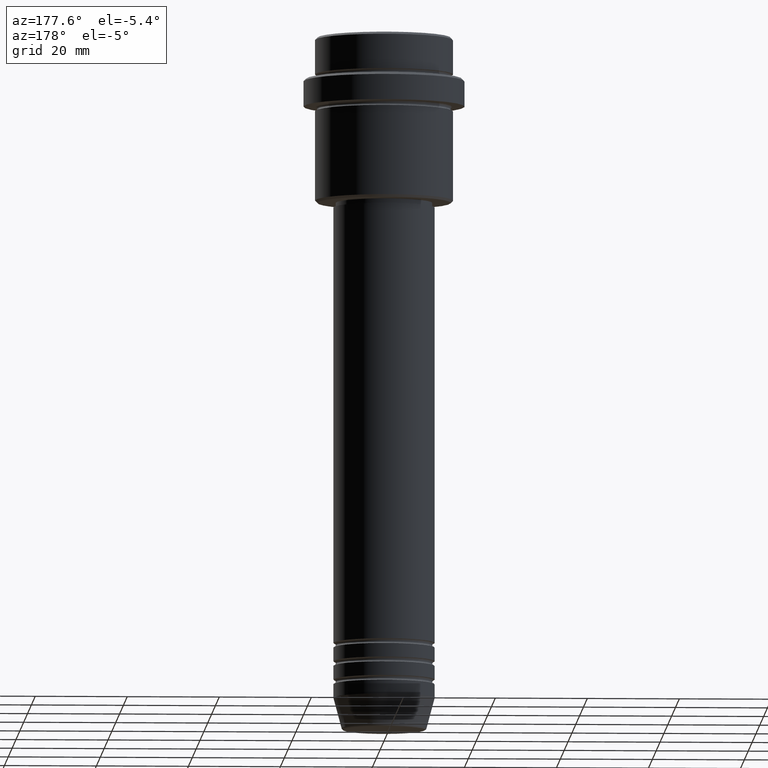
[diagram: clean part render]
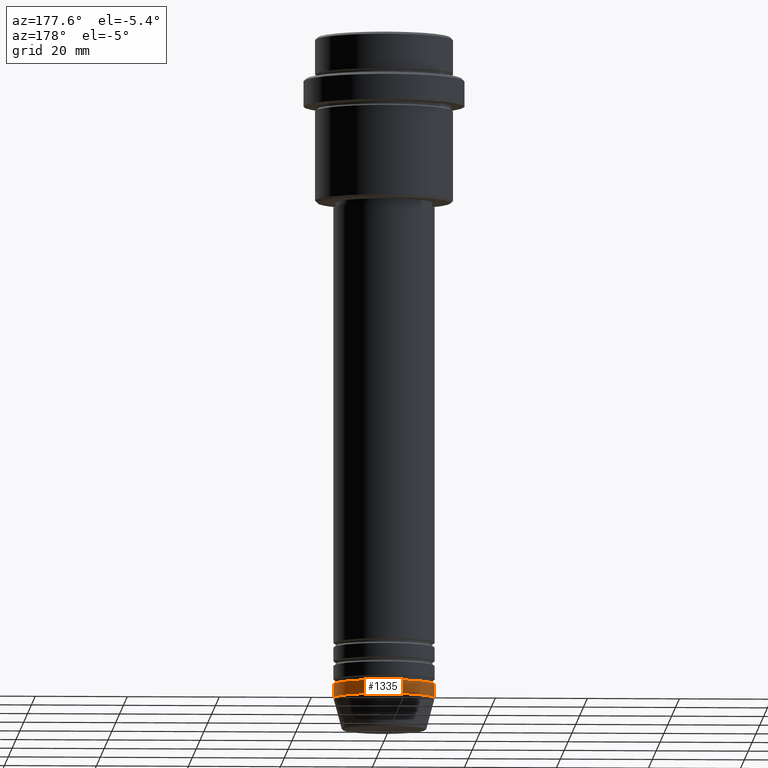
[diagram: same view with one face highlighted and labeled with its STEP entity id]
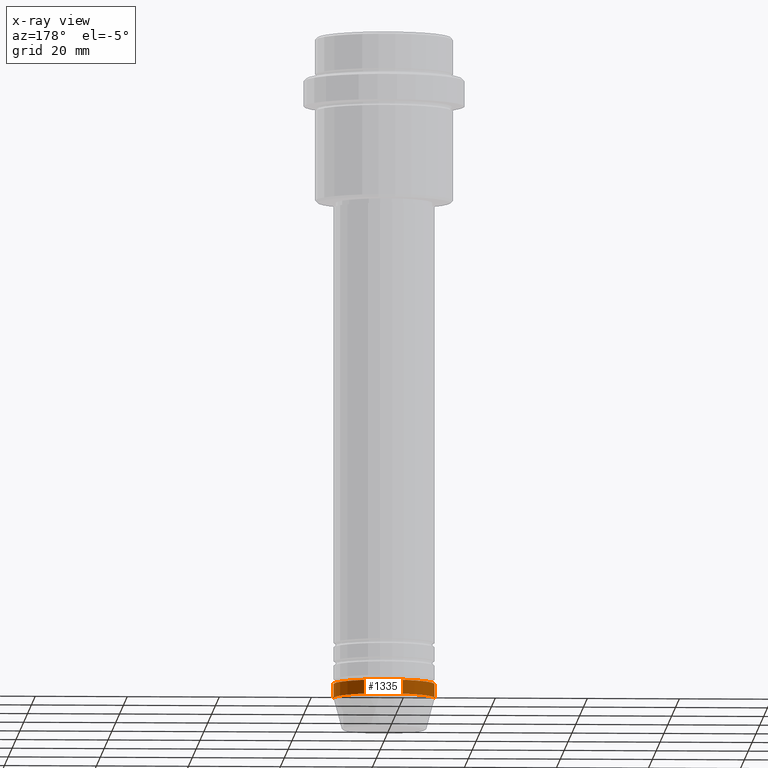
[diagram: x-ray of the same camera — body ghosted, the highlighted face saturated]
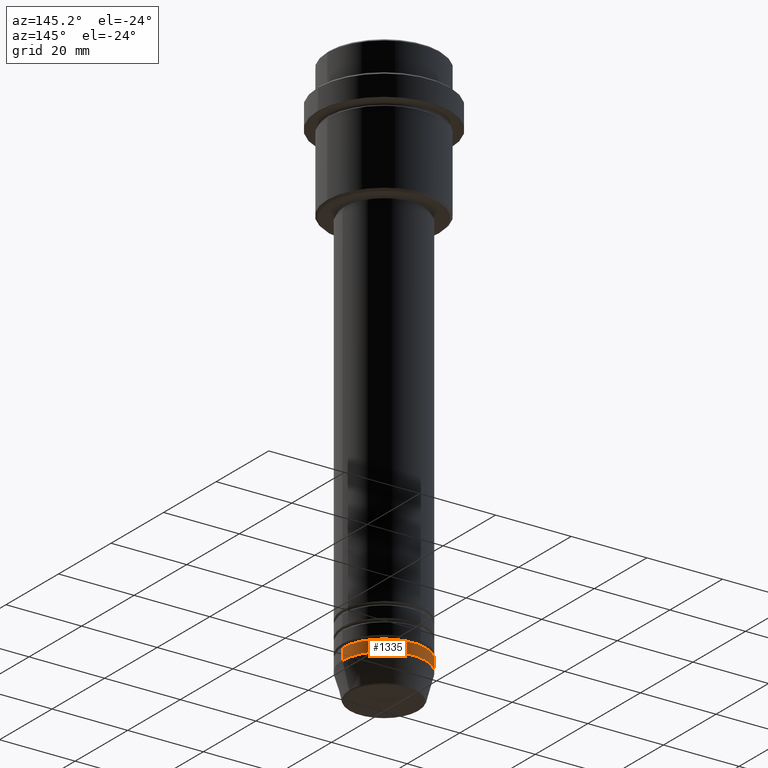
[diagram: same view with one face highlighted and labeled with its STEP entity id]
A machine part, auxiliary view. The second image highlights one B-rep face of the part: STEP entity #1335.
The next image is the same camera in x-ray: the body ghosted, the highlighted face saturated — about 0% of this face is hidden behind the body in this view.
A second angle (auxiliary view) of the same face is appended — the face is thin or edge-on in the first view.
In plain terms, the highlighted cylindrical surface (partial cylindrical patch) has radius 11 mm, axis along (-0, -0, 1).
Its self-contained STEP definition (entity closure, byte-faithful):
#7 = CARTESIAN_POINT ( 'NONE',  ( 11.00000000000000000, 0.000000000000000000, -141.0000000000000000 ) ) ;
#39 = LINE ( 'NONE', #590, #1180 ) ;
#53 = CARTESIAN_POINT ( 'NONE',  ( 11.00000000000000000, 0.000000000000000000, -144.0000000000000000 ) ) ;
#66 = ORIENTED_EDGE ( 'NONE', *, *, #346, .T. ) ;
#67 = CYLINDRICAL_SURFACE ( 'NONE', #1250, 11.00000000000000000 ) ;
#129 = EDGE_CURVE ( 'NONE', #496, #1280, #159, .T. ) ;
#159 = CIRCLE ( 'NONE', #994, 11.00000000000000000 ) ;
#170 = DIRECTION ( 'NONE',  ( 1.000000000000000000, 0.000000000000000000, 0.000000000000000000 ) ) ;
#186 = CARTESIAN_POINT ( 'NONE',  ( 0.000000000000000000, 0.000000000000000000, -141.0000000000000000 ) ) ;
#202 = VERTEX_POINT ( 'NONE', #989 ) ;
#206 = VERTEX_POINT ( 'NONE', #7 ) ;
#236 = DIRECTION ( 'NONE',  ( -0.000000000000000000, -0.000000000000000000, 1.000000000000000000 ) ) ;
#298 = CARTESIAN_POINT ( 'NONE',  ( 0.000000000000000000, 0.000000000000000000, 0.000000000000000000 ) ) ;
#346 = EDGE_CURVE ( 'NONE', #1280, #202, #39, .T. ) ;
#366 = CARTESIAN_POINT ( 'NONE',  ( -11.00000000000000000, 1.347111479062088405E-15, -144.0000000000000000 ) ) ;
#370 = CIRCLE ( 'NONE', #1090, 11.00000000000000000 ) ;
#435 = DIRECTION ( 'NONE',  ( -0.000000000000000000, -0.000000000000000000, 1.000000000000000000 ) ) ;
#438 = DIRECTION ( 'NONE',  ( 1.000000000000000000, 0.000000000000000000, 0.000000000000000000 ) ) ;
#496 = VERTEX_POINT ( 'NONE', #53 ) ;
#500 = FACE_OUTER_BOUND ( 'NONE', #1058, .T. ) ;
#544 = DIRECTION ( 'NONE',  ( 1.000000000000000000, 0.000000000000000000, 0.000000000000000000 ) ) ;
#590 = CARTESIAN_POINT ( 'NONE',  ( -11.00000000000000000, 1.347111479062088405E-15, 0.000000000000000000 ) ) ;
#648 = CARTESIAN_POINT ( 'NONE',  ( 0.000000000000000000, 0.000000000000000000, -144.0000000000000000 ) ) ;
#744 = ORIENTED_EDGE ( 'NONE', *, *, #1052, .F. ) ;
#763 = ORIENTED_EDGE ( 'NONE', *, *, #129, .T. ) ;
#774 = CARTESIAN_POINT ( 'NONE',  ( 11.00000000000000000, 0.000000000000000000, 0.000000000000000000 ) ) ;
#853 = DIRECTION ( 'NONE',  ( -0.000000000000000000, -0.000000000000000000, 1.000000000000000000 ) ) ;
#985 = DIRECTION ( 'NONE',  ( -0.000000000000000000, -0.000000000000000000, 1.000000000000000000 ) ) ;
#989 = CARTESIAN_POINT ( 'NONE',  ( -11.00000000000000000, 1.347111479062088405E-15, -141.0000000000000000 ) ) ;
#994 = AXIS2_PLACEMENT_3D ( 'NONE', #648, #435, #544 ) ;
#1028 = DIRECTION ( 'NONE',  ( -0.000000000000000000, -0.000000000000000000, 1.000000000000000000 ) ) ;
#1052 = EDGE_CURVE ( 'NONE', #496, #206, #1324, .T. ) ;
#1058 = EDGE_LOOP ( 'NONE', ( #763, #66, #1196, #744 ) ) ;
#1090 = AXIS2_PLACEMENT_3D ( 'NONE', #186, #236, #438 ) ;
#1093 = EDGE_CURVE ( 'NONE', #206, #202, #370, .T. ) ;
#1180 = VECTOR ( 'NONE', #1028, 1000.000000000000000 ) ;
#1196 = ORIENTED_EDGE ( 'NONE', *, *, #1093, .F. ) ;
#1250 = AXIS2_PLACEMENT_3D ( 'NONE', #298, #853, #170 ) ;
#1280 = VERTEX_POINT ( 'NONE', #366 ) ;
#1324 = LINE ( 'NONE', #774, #1342 ) ;
#1335 = ADVANCED_FACE ( 'NONE', ( #500 ), #67, .T. ) ;
#1342 = VECTOR ( 'NONE', #985, 1000.000000000000000 ) ;